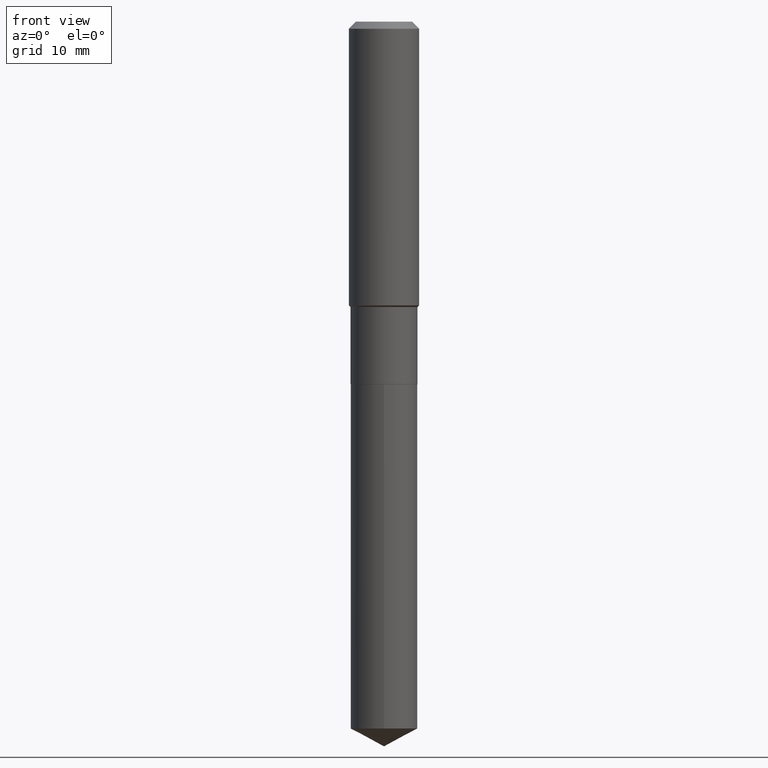
[diagram: clean part render]
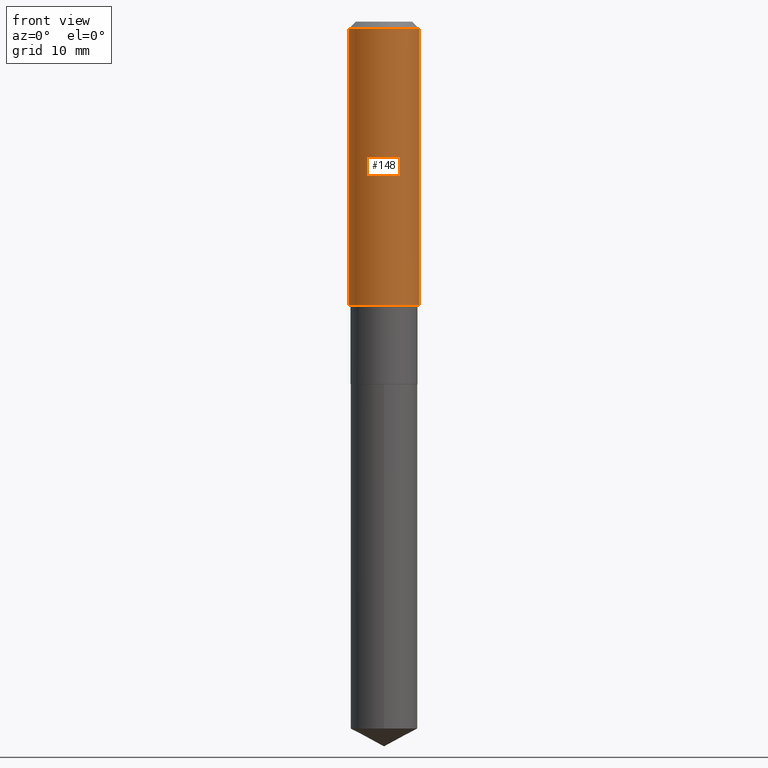
[diagram: same view with one face highlighted and labeled with its STEP entity id]
A machine part, front view. The second image highlights one B-rep face of the part: STEP entity #148.
In plain terms, the highlighted cylindrical surface (edge-blend (fillet) strip) has radius 5 mm, axis along (-0, 0, 1).
Its self-contained STEP definition (entity closure, byte-faithful):
#11 = CIRCLE ( 'NONE', #473, 0.1968500000000002192 ) ;
#27 = EDGE_CURVE ( 'NONE', #205, #251, #147, .T. ) ;
#29 = ORIENTED_EDGE ( 'NONE', *, *, #61, .T. ) ;
#34 = EDGE_CURVE ( 'NONE', #251, #441, #191, .T. ) ;
#53 = EDGE_CURVE ( 'NONE', #407, #441, #286, .T. ) ;
#61 = EDGE_CURVE ( 'NONE', #205, #407, #11, .T. ) ;
#70 = DIRECTION ( 'NONE',  ( 1.000000000000000000, -6.982962677686265922E-15, 0.000000000000000000 ) ) ;
#84 = DIRECTION ( 'NONE',  ( 1.000000000000000000, -6.982962677686266711E-15, 4.876176775795935793E-29 ) ) ;
#85 = AXIS2_PLACEMENT_3D ( 'NONE', #361, #430, #84 ) ;
#93 = DIRECTION ( 'NONE',  ( -2.445468806185136877E-29, 3.491481338843145188E-15, 1.000000000000000000 ) ) ;
#106 = ORIENTED_EDGE ( 'NONE', *, *, #27, .F. ) ;
#108 = CARTESIAN_POINT ( 'NONE',  ( -0.1968500000000001082, 1.398703375343757985E-15, -9.682923725166787881E-30 ) ) ;
#109 = CARTESIAN_POINT ( 'NONE',  ( 0.1968500000000000250, -1.512055823412797189E-15, -0.03937000000000029365 ) ) ;
#113 = CARTESIAN_POINT ( 'NONE',  ( 9.627810689950954155E-31, -1.374596203102556547E-16, -0.03937000000000029365 ) ) ;
#147 = LINE ( 'NONE', #108, #248 ) ;
#148 = ADVANCED_FACE ( 'NONE', ( #289 ), #172, .T. ) ;
#150 = DIRECTION ( 'NONE',  ( -2.445468806185136877E-29, 3.491481338843145188E-15, 1.000000000000000000 ) ) ;
#162 = CARTESIAN_POINT ( 'NONE',  ( 0.1968500000000001082, -1.374596203102542397E-15, 9.598753983154305062E-30 ) ) ;
#172 = CYLINDRICAL_SURFACE ( 'NONE', #85, 0.1968500000000001082 ) ;
#176 = AXIS2_PLACEMENT_3D ( 'NONE', #113, #416, #70 ) ;
#182 = ORIENTED_EDGE ( 'NONE', *, *, #53, .T. ) ;
#191 = CIRCLE ( 'NONE', #176, 0.1968500000000000250 ) ;
#205 = VERTEX_POINT ( 'NONE', #398 ) ;
#237 = VECTOR ( 'NONE', #93, 39.37007874015748143 ) ;
#248 = VECTOR ( 'NONE', #150, 39.37007874015748143 ) ;
#250 = DIRECTION ( 'NONE',  ( 1.000000000000000000, -6.982962677686265922E-15, 0.000000000000000000 ) ) ;
#251 = VERTEX_POINT ( 'NONE', #259 ) ;
#259 = CARTESIAN_POINT ( 'NONE',  ( -0.1968500000000000250, -1.441127886417702753E-15, -0.03937000000000029365 ) ) ;
#273 = CARTESIAN_POINT ( 'NONE',  ( 0.1968500000000002192, -6.916799106315208686E-15, -1.587349999999999595 ) ) ;
#286 = LINE ( 'NONE', #162, #237 ) ;
#289 = FACE_OUTER_BOUND ( 'NONE', #399, .T. ) ;
#324 = CARTESIAN_POINT ( 'NONE',  ( 3.881814909497976059E-29, -5.542202903212666289E-15, -1.587349999999999595 ) ) ;
#333 = ORIENTED_EDGE ( 'NONE', *, *, #34, .F. ) ;
#361 = CARTESIAN_POINT ( 'NONE',  ( 0.000000000000000000, 0.000000000000000000, 0.000000000000000000 ) ) ;
#398 = CARTESIAN_POINT ( 'NONE',  ( -0.1968500000000002192, -4.143499527868906923E-15, -1.587349999999999595 ) ) ;
#399 = EDGE_LOOP ( 'NONE', ( #106, #29, #182, #333 ) ) ;
#407 = VERTEX_POINT ( 'NONE', #273 ) ;
#416 = DIRECTION ( 'NONE',  ( -2.445468806185136597E-29, 3.491481338843145583E-15, 1.000000000000000000 ) ) ;
#430 = DIRECTION ( 'NONE',  ( -2.445468806185136597E-29, 3.491481338843145583E-15, 1.000000000000000000 ) ) ;
#438 = DIRECTION ( 'NONE',  ( -2.445468806185136597E-29, 3.491481338843145583E-15, 1.000000000000000000 ) ) ;
#441 = VERTEX_POINT ( 'NONE', #109 ) ;
#473 = AXIS2_PLACEMENT_3D ( 'NONE', #324, #438, #250 ) ;